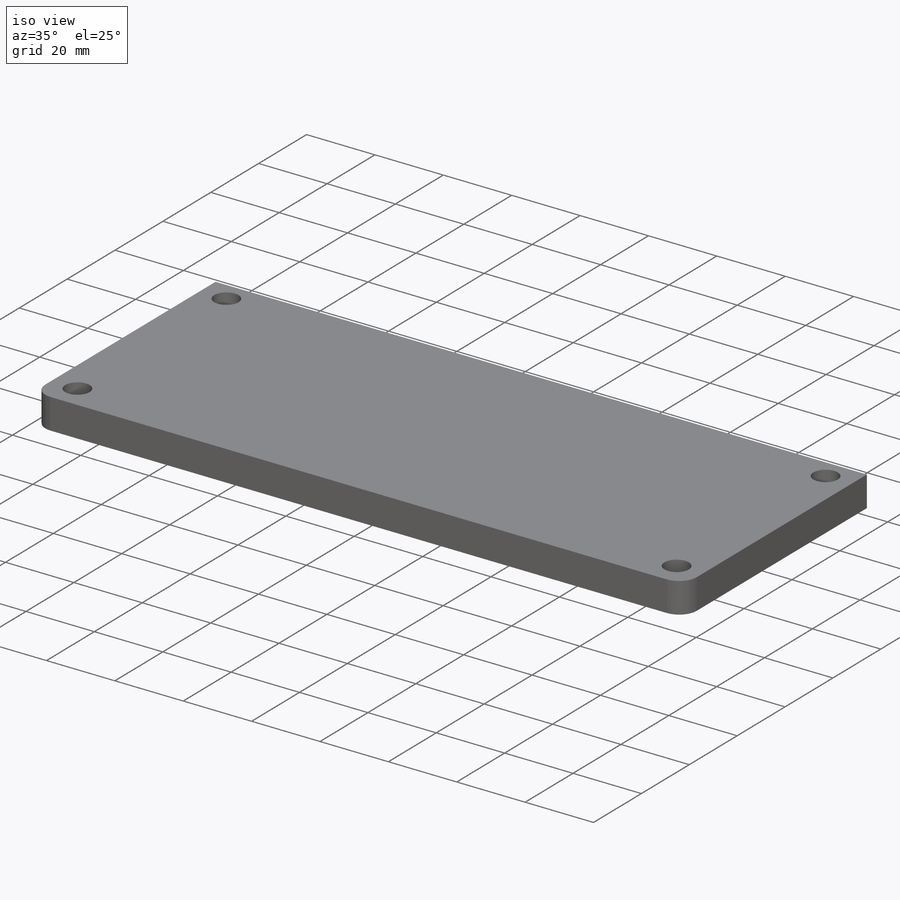
[diagram: iso view]
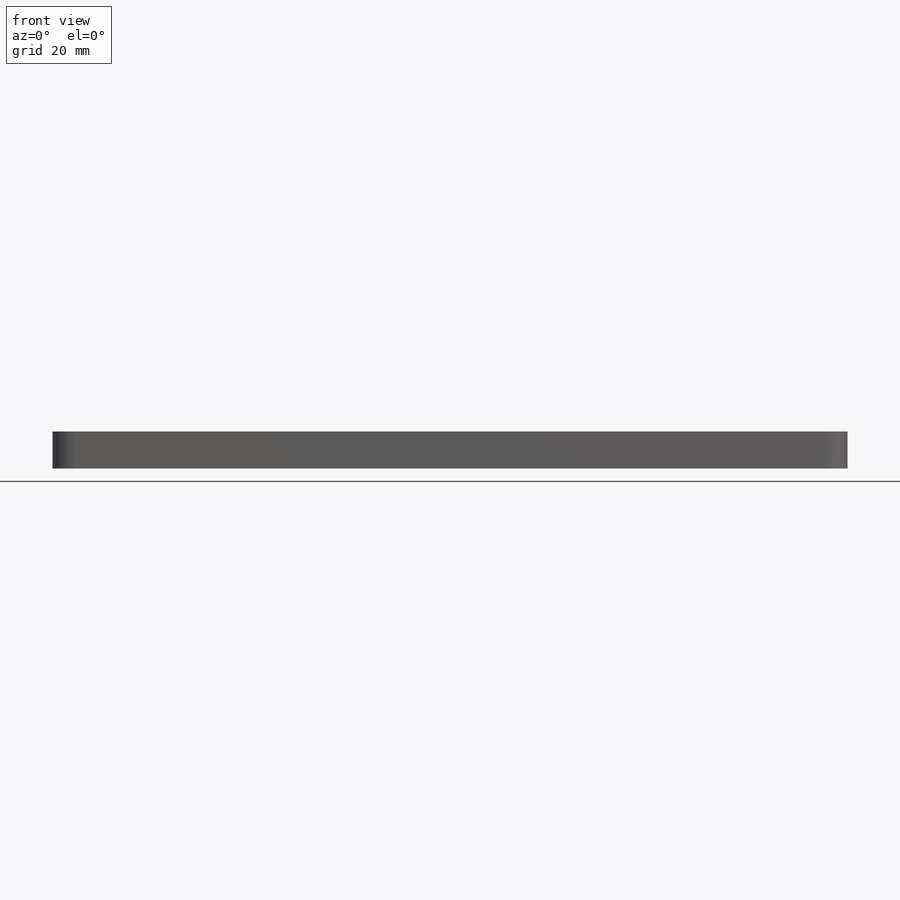
[diagram: front view]
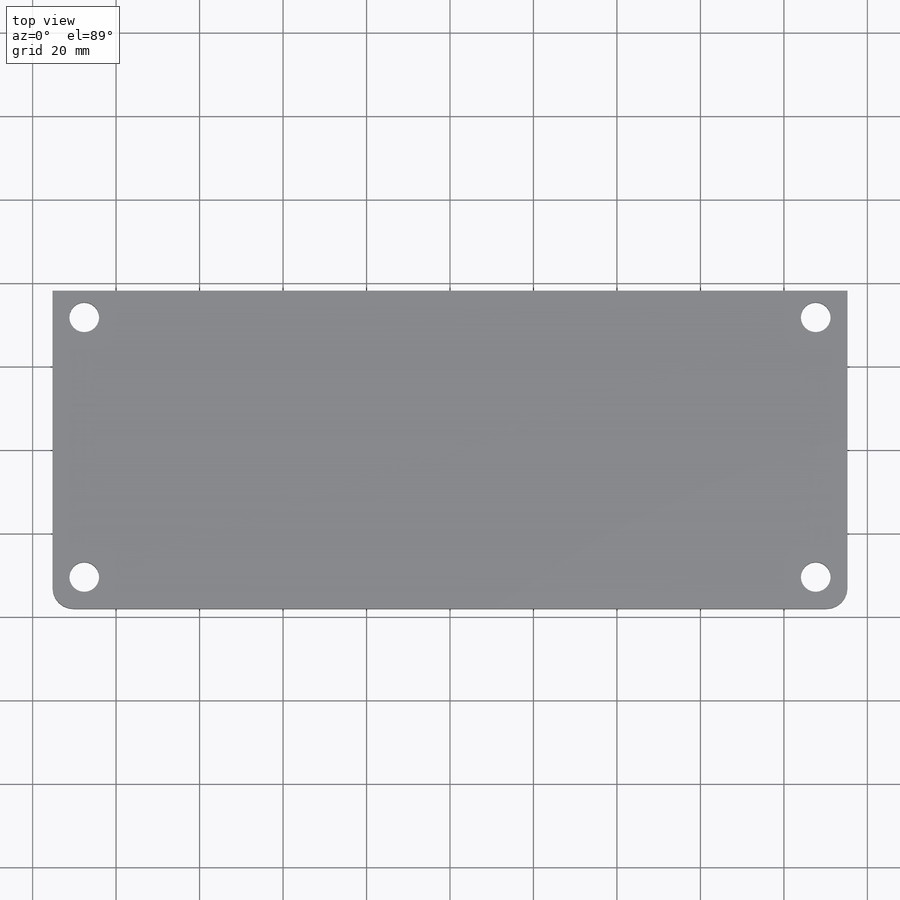
[diagram: top view]
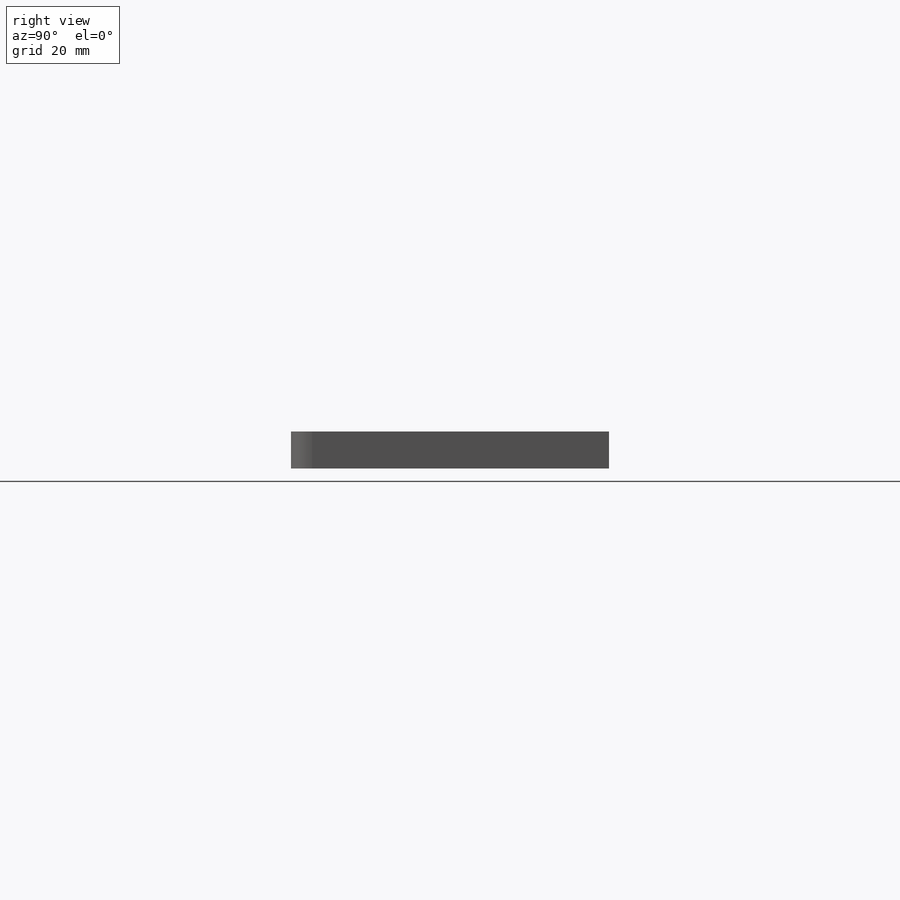
[diagram: right view]
SOLIDWORKS PART (.sldprt)
format: sldprt  version: not decoded by parser v0  size: 183,808 bytes
history: native  units: mm
features: sketch x3, material x1, extrude x1, hole x1, fillet x1 + 1 further entry (+13 scaffold rows collapsed)
feature tree (21):
  scaffold x13  (default folders/planes/origin — collapsed)
  material  "6061-T6 Al"
  "Origin"  ID=-1
  sketch  "Sketch1"  dims[D1=190.5mm D2=76.2mm]
  extrude  "Boss-Extrude1"  Depth=8.89mm
  hole  "1/4 Clearance Hole1"  Diameter=7.14248mm Depth=8.89mm
  sketch  "Sketch3"  dims[c1.D1=7.62mm c1.D2=7.62mm c1.D3=7.62mm c1.D4=7.62mm c1.D5=7.62mm c1.D6=7.62mm c1.D7=7.62mm c1.D8=7.62mm c2.D2=62.23mm c2.D4=62.23mm]
  sketch  "Sketch2"  dims[hole-wizard template sketch: 60 standard entries collapsed; hole parameters kept: c18.Thru Hole Depth=8.89mm]
  fillet  "Fillet1"  Radius=5.08mm
decode coverage: 6 of 6 modeling features carry decoded parameters; 1 rows unclassified (native names shown)
note: ~ marks probable driven/reference dimensions
note: suppression state not decoded; provenance and decode notes live in map.json
